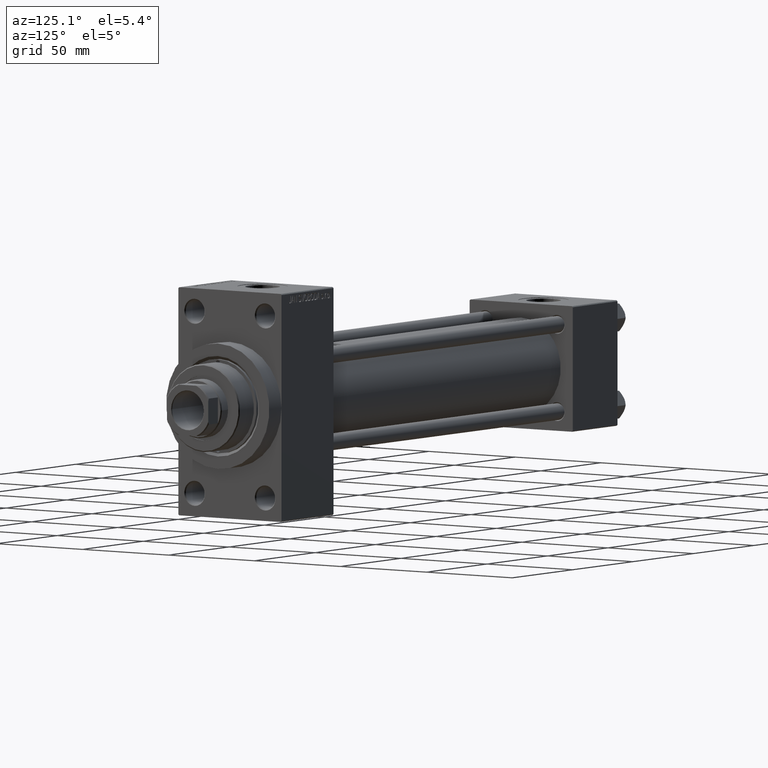
[diagram: clean part render]
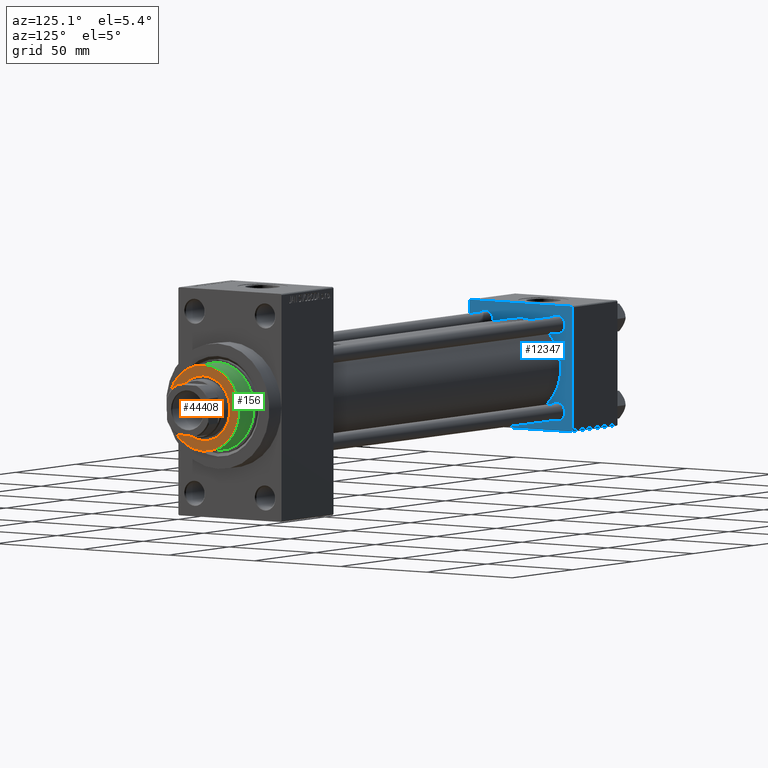
[diagram: same view with three faces highlighted in distinct colors, each labeled with its STEP entity id]
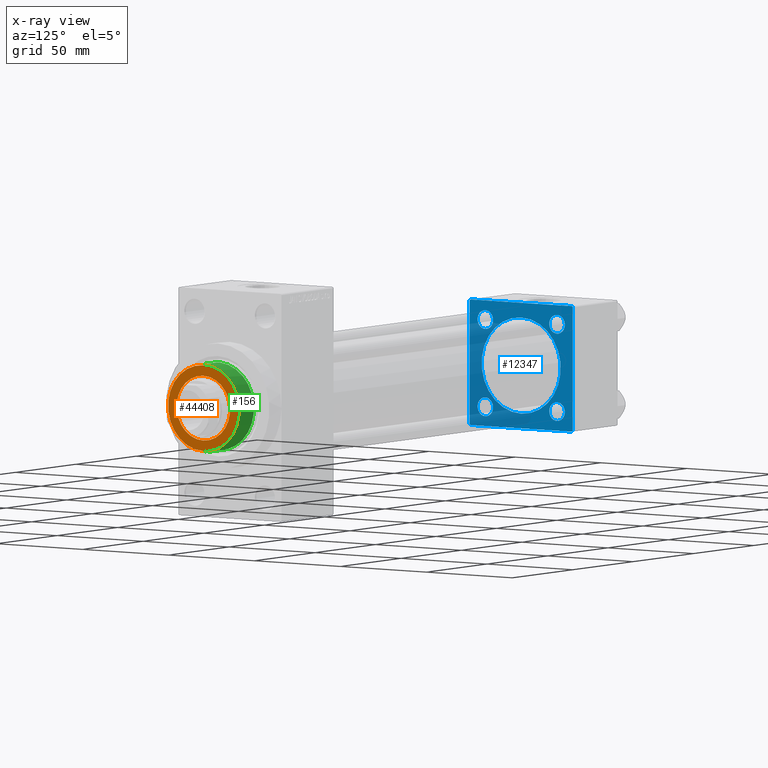
[diagram: x-ray of the same camera — body ghosted, the three highlighted faces saturated]
A machine part, auxiliary view with three faces highlighted in distinct colors.
The next image is the same camera in x-ray (body ghosted, the three faces saturated) — at least one of them is partly hidden behind the body in this view.
Their STEP definitions:

[orange] entity #44408 — the highlighted planar face has unit normal (1, -0, -0).
#189 = CARTESIAN_POINT ( 'NONE',  ( -20.50000000000000355, 0.000000000000000000, 55.26000000000000512 ) ) ;
#351 = EDGE_CURVE ( 'NONE', #33571, #24630, #36420, .T. ) ;
#4675 = CARTESIAN_POINT ( 'NONE',  ( 0.000000000000000000, 0.000000000000000000, 55.26000000000000512 ) ) ;
#4939 = AXIS2_PLACEMENT_3D ( 'NONE', #12833, #5144, #19807 ) ;
#5144 = DIRECTION ( 'NONE',  ( 0.000000000000000000, 0.000000000000000000, 1.000000000000000000 ) ) ;
#5673 = AXIS2_PLACEMENT_3D ( 'NONE', #4675, #41443, #45782 ) ;
#7201 = ORIENTED_EDGE ( 'NONE', *, *, #14554, .T. ) ;
#8754 = CIRCLE ( 'NONE', #9511, 15.50000000000000000 ) ;
#9376 = VERTEX_POINT ( 'NONE', #10929 ) ;
#9511 = AXIS2_PLACEMENT_3D ( 'NONE', #41750, #42458, #39099 ) ;
#10929 = CARTESIAN_POINT ( 'NONE',  ( 20.50000000000000355, 2.541142108230758269E-15, 55.26000000000000512 ) ) ;
#11721 = ORIENTED_EDGE ( 'NONE', *, *, #22144, .F. ) ;
#11731 = DIRECTION ( 'NONE',  ( 0.000000000000000000, 0.000000000000000000, 1.000000000000000000 ) ) ;
#11976 = FACE_OUTER_BOUND ( 'NONE', #30670, .T. ) ;
#12833 = CARTESIAN_POINT ( 'NONE',  ( 0.000000000000000000, 0.000000000000000000, 55.26000000000000512 ) ) ;
#14425 = CARTESIAN_POINT ( 'NONE',  ( 15.50000000000000000, 0.000000000000000000, 55.26000000000000512 ) ) ;
#14554 = EDGE_CURVE ( 'NONE', #38658, #9376, #15434, .T. ) ;
#14583 = DIRECTION ( 'NONE',  ( 1.000000000000000000, 0.000000000000000000, 0.000000000000000000 ) ) ;
#15350 = PLANE ( 'NONE',  #44999 ) ;
#15434 = CIRCLE ( 'NONE', #22360, 20.50000000000000355 ) ;
#16131 = ORIENTED_EDGE ( 'NONE', *, *, #351, .F. ) ;
#17167 = CIRCLE ( 'NONE', #5673, 20.50000000000000355 ) ;
#19807 = DIRECTION ( 'NONE',  ( 1.000000000000000000, 0.000000000000000000, 0.000000000000000000 ) ) ;
#21132 = EDGE_CURVE ( 'NONE', #9376, #38658, #17167, .T. ) ;
#22144 = EDGE_CURVE ( 'NONE', #24630, #33571, #8754, .T. ) ;
#22360 = AXIS2_PLACEMENT_3D ( 'NONE', #43185, #28778, #14583 ) ;
#23215 = EDGE_LOOP ( 'NONE', ( #16131, #11721 ) ) ;
#24630 = VERTEX_POINT ( 'NONE', #28401 ) ;
#26401 = DIRECTION ( 'NONE',  ( 1.000000000000000000, 0.000000000000000000, -0.000000000000000000 ) ) ;
#28401 = CARTESIAN_POINT ( 'NONE',  ( -15.50000000000000000, 1.898202538678397557E-15, 55.26000000000000512 ) ) ;
#28778 = DIRECTION ( 'NONE',  ( 0.000000000000000000, 0.000000000000000000, 1.000000000000000000 ) ) ;
#30670 = EDGE_LOOP ( 'NONE', ( #7201, #37303 ) ) ;
#33571 = VERTEX_POINT ( 'NONE', #14425 ) ;
#33619 = FACE_BOUND ( 'NONE', #23215, .T. ) ;
#36420 = CIRCLE ( 'NONE', #4939, 15.50000000000000000 ) ;
#37303 = ORIENTED_EDGE ( 'NONE', *, *, #21132, .T. ) ;
#38658 = VERTEX_POINT ( 'NONE', #189 ) ;
#39099 = DIRECTION ( 'NONE',  ( 1.000000000000000000, 0.000000000000000000, 0.000000000000000000 ) ) ;
#41443 = DIRECTION ( 'NONE',  ( 0.000000000000000000, 0.000000000000000000, 1.000000000000000000 ) ) ;
#41750 = CARTESIAN_POINT ( 'NONE',  ( 0.000000000000000000, 0.000000000000000000, 55.26000000000000512 ) ) ;
#42458 = DIRECTION ( 'NONE',  ( 0.000000000000000000, 0.000000000000000000, 1.000000000000000000 ) ) ;
#43185 = CARTESIAN_POINT ( 'NONE',  ( 0.000000000000000000, 0.000000000000000000, 55.26000000000000512 ) ) ;
#44408 = ADVANCED_FACE ( 'NONE', ( #33619, #11976 ), #15350, .T. ) ;
#44660 = CARTESIAN_POINT ( 'NONE',  ( 0.000000000000000000, 0.000000000000000000, 55.26000000000000512 ) ) ;
#44999 = AXIS2_PLACEMENT_3D ( 'NONE', #44660, #11731, #26401 ) ;
#45782 = DIRECTION ( 'NONE',  ( 1.000000000000000000, 0.000000000000000000, 0.000000000000000000 ) ) ;

[blue] entity #12347 — the highlighted planar face has unit normal (-1, 0, 0).
#155 = EDGE_LOOP ( 'NONE', ( #12265, #21954 ) ) ;
#1669 = CARTESIAN_POINT ( 'NONE',  ( 37.00000000000000000, 20.84999999999999787, 25.35000000000000497 ) ) ;
#1905 = CARTESIAN_POINT ( 'NONE',  ( 37.00000000000000000, -20.84999999999999076, -20.85000000000000497 ) ) ;
#1908 = FACE_BOUND ( 'NONE', #28838, .T. ) ;
#1985 = ORIENTED_EDGE ( 'NONE', *, *, #37350, .F. ) ;
#2185 = LINE ( 'NONE', #35116, #10339 ) ;
#2249 = EDGE_LOOP ( 'NONE', ( #14739, #46127 ) ) ;
#2334 = CARTESIAN_POINT ( 'NONE',  ( 37.00000000000000000, 20.84999999999999787, -20.85000000000000142 ) ) ;
#2541 = EDGE_CURVE ( 'NONE', #24524, #30530, #15171, .T. ) ;
#2546 = CARTESIAN_POINT ( 'NONE',  ( 37.00000000000000000, -30.00000000000000000, 29.99999999999999289 ) ) ;
#2880 = VERTEX_POINT ( 'NONE', #10639 ) ;
#2896 = DIRECTION ( 'NONE',  ( -1.000000000000000000, 0.000000000000000000, -0.000000000000000000 ) ) ;
#3134 = EDGE_CURVE ( 'NONE', #27179, #46112, #44519, .T. ) ;
#3719 = DIRECTION ( 'NONE',  ( 0.000000000000000000, 0.000000000000000000, 1.000000000000000000 ) ) ;
#4117 = VERTEX_POINT ( 'NONE', #40353 ) ;
#4171 = LINE ( 'NONE', #14993, #36599 ) ;
#4261 = CARTESIAN_POINT ( 'NONE',  ( 37.00000000000000000, -29.50000000000000000, -30.00000000000000711 ) ) ;
#4356 = VERTEX_POINT ( 'NONE', #22967 ) ;
#4643 = DIRECTION ( 'NONE',  ( -1.000000000000000000, 0.000000000000000000, -0.000000000000000000 ) ) ;
#5219 = DIRECTION ( 'NONE',  ( 0.000000000000000000, 0.000000000000000000, 1.000000000000000000 ) ) ;
#5571 = AXIS2_PLACEMENT_3D ( 'NONE', #37118, #4643, #7311 ) ;
#5836 = VERTEX_POINT ( 'NONE', #19016 ) ;
#6048 = CARTESIAN_POINT ( 'NONE',  ( 37.00000000000000711, -2.602085213965210642E-15, 23.00000000000000000 ) ) ;
#6220 = FACE_BOUND ( 'NONE', #155, .T. ) ;
#6618 = DIRECTION ( 'NONE',  ( -1.000000000000000000, 0.000000000000000000, -0.000000000000000000 ) ) ;
#6949 = LINE ( 'NONE', #10780, #39963 ) ;
#6980 = VERTEX_POINT ( 'NONE', #17421 ) ;
#7026 = CARTESIAN_POINT ( 'NONE',  ( 37.00000000000000000, 29.99999999999999289, -30.00000000000000000 ) ) ;
#7311 = DIRECTION ( 'NONE',  ( 0.000000000000000000, 0.000000000000000000, 1.000000000000000000 ) ) ;
#8228 = CARTESIAN_POINT ( 'NONE',  ( 37.00000000000000000, -20.84999999999999076, 25.35000000000000853 ) ) ;
#8627 = ORIENTED_EDGE ( 'NONE', *, *, #34907, .T. ) ;
#8870 = FACE_OUTER_BOUND ( 'NONE', #38385, .T. ) ;
#9105 = FACE_BOUND ( 'NONE', #20011, .T. ) ;
#9106 = VERTEX_POINT ( 'NONE', #4261 ) ;
#9175 = ORIENTED_EDGE ( 'NONE', *, *, #13801, .T. ) ;
#9586 = CARTESIAN_POINT ( 'NONE',  ( 37.00000000000000000, 0.000000000000000000, 0.000000000000000000 ) ) ;
#9818 = VERTEX_POINT ( 'NONE', #16800 ) ;
#9907 = EDGE_CURVE ( 'NONE', #46925, #5836, #17593, .T. ) ;
#9996 = AXIS2_PLACEMENT_3D ( 'NONE', #9586, #23537, #24253 ) ;
#10092 = CARTESIAN_POINT ( 'NONE',  ( 37.00000000000000000, -20.84999999999999076, 20.85000000000000497 ) ) ;
#10177 = ORIENTED_EDGE ( 'NONE', *, *, #29782, .T. ) ;
#10309 = VECTOR ( 'NONE', #14165, 1000.000000000000114 ) ;
#10339 = VECTOR ( 'NONE', #17076, 1000.000000000000000 ) ;
#10639 = CARTESIAN_POINT ( 'NONE',  ( 37.00000000000000000, 20.84999999999999787, 16.34999999999999787 ) ) ;
#10694 = ORIENTED_EDGE ( 'NONE', *, *, #44975, .T. ) ;
#10759 = CARTESIAN_POINT ( 'NONE',  ( 37.00000000000000000, -20.84999999999999076, -16.35000000000000142 ) ) ;
#10780 = CARTESIAN_POINT ( 'NONE',  ( 37.00000000000000000, -29.50000000000001066, -30.00000000000000711 ) ) ;
#11028 = AXIS2_PLACEMENT_3D ( 'NONE', #34421, #15221, #30576 ) ;
#11261 = CARTESIAN_POINT ( 'NONE',  ( 37.00000000000000000, 29.49999999999999289, 30.00000000000000000 ) ) ;
#11617 = CIRCLE ( 'NONE', #36194, 4.500000000000003553 ) ;
#12265 = ORIENTED_EDGE ( 'NONE', *, *, #32301, .T. ) ;
#12312 = VERTEX_POINT ( 'NONE', #1669 ) ;
#12347 = ADVANCED_FACE ( 'NONE', ( #9105, #1908, #20640, #6220, #20877, #8870 ), #38434, .F. ) ;
#12944 = CARTESIAN_POINT ( 'NONE',  ( 37.00000000000000000, 20.84999999999999787, -25.35000000000000497 ) ) ;
#13144 = DIRECTION ( 'NONE',  ( -1.000000000000000000, 0.000000000000000000, -0.000000000000000000 ) ) ;
#13458 = VERTEX_POINT ( 'NONE', #11261 ) ;
#13531 = EDGE_CURVE ( 'NONE', #28377, #9106, #6949, .T. ) ;
#13801 = EDGE_CURVE ( 'NONE', #5836, #46925, #39995, .T. ) ;
#14124 = CIRCLE ( 'NONE', #11028, 23.00000000000000000 ) ;
#14140 = CARTESIAN_POINT ( 'NONE',  ( 37.00000000000000000, -30.00000000000000000, 29.49999999999999289 ) ) ;
#14165 = DIRECTION ( 'NONE',  ( 0.000000000000000000, -0.7071067811865474617, 0.7071067811865474617 ) ) ;
#14233 = AXIS2_PLACEMENT_3D ( 'NONE', #10092, #2896, #47113 ) ;
#14235 = CIRCLE ( 'NONE', #41083, 4.500000000000003553 ) ;
#14409 = AXIS2_PLACEMENT_3D ( 'NONE', #18381, #21514, #3719 ) ;
#14739 = ORIENTED_EDGE ( 'NONE', *, *, #2541, .F. ) ;
#14993 = CARTESIAN_POINT ( 'NONE',  ( 37.00000000000000000, 29.99999999999999289, 30.00000000000000000 ) ) ;
#15156 = EDGE_CURVE ( 'NONE', #12312, #2880, #11617, .T. ) ;
#15171 = CIRCLE ( 'NONE', #14409, 23.00000000000000000 ) ;
#15221 = DIRECTION ( 'NONE',  ( 1.000000000000000000, -0.000000000000000000, 0.000000000000000000 ) ) ;
#15467 = VECTOR ( 'NONE', #28802, 1000.000000000000114 ) ;
#15704 = CIRCLE ( 'NONE', #46377, 4.500000000000003553 ) ;
#16087 = DIRECTION ( 'NONE',  ( 0.000000000000000000, 0.000000000000000000, 1.000000000000000000 ) ) ;
#16267 = EDGE_LOOP ( 'NONE', ( #41390, #34195 ) ) ;
#16800 = CARTESIAN_POINT ( 'NONE',  ( 37.00000000000000000, -29.49999999999998579, 29.99999999999999289 ) ) ;
#17076 = DIRECTION ( 'NONE',  ( 0.000000000000000000, 0.000000000000000000, -1.000000000000000000 ) ) ;
#17097 = CARTESIAN_POINT ( 'NONE',  ( 37.00000000000000000, 20.84999999999999787, -16.34999999999999787 ) ) ;
#17115 = CARTESIAN_POINT ( 'NONE',  ( 37.00000000000000000, 20.84999999999999787, 20.85000000000000142 ) ) ;
#17421 = CARTESIAN_POINT ( 'NONE',  ( 37.00000000000000000, -20.84999999999999076, 16.35000000000000142 ) ) ;
#17593 = CIRCLE ( 'NONE', #19134, 4.500000000000003553 ) ;
#17760 = CARTESIAN_POINT ( 'NONE',  ( 37.00000000000000000, 29.49999999999999289, 30.00000000000000000 ) ) ;
#17808 = ORIENTED_EDGE ( 'NONE', *, *, #13531, .T. ) ;
#18355 = DIRECTION ( 'NONE',  ( 0.000000000000000000, -1.000000000000000000, -1.156482317317871725E-16 ) ) ;
#18381 = CARTESIAN_POINT ( 'NONE',  ( 37.00000000000000711, -2.602085213965210642E-15, 0.000000000000000000 ) ) ;
#18470 = DIRECTION ( 'NONE',  ( 0.000000000000000000, 0.7071067811865474617, -0.7071067811865474617 ) ) ;
#19016 = CARTESIAN_POINT ( 'NONE',  ( 37.00000000000000000, -20.84999999999999076, -25.35000000000000853 ) ) ;
#19134 = AXIS2_PLACEMENT_3D ( 'NONE', #1905, #19454, #16087 ) ;
#19454 = DIRECTION ( 'NONE',  ( -1.000000000000000000, 0.000000000000000000, -0.000000000000000000 ) ) ;
#20011 = EDGE_LOOP ( 'NONE', ( #9175, #40236 ) ) ;
#20364 = CARTESIAN_POINT ( 'NONE',  ( 37.00000000000000000, -20.84999999999999076, -20.85000000000000497 ) ) ;
#20640 = FACE_BOUND ( 'NONE', #16267, .T. ) ;
#20877 = FACE_BOUND ( 'NONE', #2249, .T. ) ;
#21359 = VERTEX_POINT ( 'NONE', #8228 ) ;
#21436 = EDGE_CURVE ( 'NONE', #30530, #24524, #14124, .T. ) ;
#21514 = DIRECTION ( 'NONE',  ( 1.000000000000000000, -0.000000000000000000, 0.000000000000000000 ) ) ;
#21578 = LINE ( 'NONE', #14140, #15467 ) ;
#21844 = VECTOR ( 'NONE', #30775, 1000.000000000000000 ) ;
#21954 = ORIENTED_EDGE ( 'NONE', *, *, #15156, .T. ) ;
#21963 = EDGE_CURVE ( 'NONE', #4356, #13458, #28583, .T. ) ;
#22113 = CARTESIAN_POINT ( 'NONE',  ( 37.00000000000000000, 20.84999999999999787, -20.85000000000000142 ) ) ;
#22967 = CARTESIAN_POINT ( 'NONE',  ( 37.00000000000000000, 29.99999999999999289, 29.50000000000000000 ) ) ;
#23537 = DIRECTION ( 'NONE',  ( -1.000000000000000000, 0.000000000000000000, -0.000000000000000000 ) ) ;
#24209 = DIRECTION ( 'NONE',  ( -1.000000000000000000, 0.000000000000000000, -0.000000000000000000 ) ) ;
#24253 = DIRECTION ( 'NONE',  ( -0.000000000000000000, 0.000000000000000000, 1.000000000000000000 ) ) ;
#24524 = VERTEX_POINT ( 'NONE', #6048 ) ;
#24766 = CARTESIAN_POINT ( 'NONE',  ( 37.00000000000000000, 29.49999999999997868, -30.00000000000000000 ) ) ;
#26169 = EDGE_CURVE ( 'NONE', #27179, #9106, #39953, .T. ) ;
#26498 = DIRECTION ( 'NONE',  ( -0.000000000000000000, 0.7071067811865574537, 0.7071067811865376918 ) ) ;
#27179 = VERTEX_POINT ( 'NONE', #24766 ) ;
#27257 = EDGE_CURVE ( 'NONE', #21359, #6980, #29558, .T. ) ;
#27557 = LINE ( 'NONE', #2546, #34799 ) ;
#27754 = ORIENTED_EDGE ( 'NONE', *, *, #3134, .T. ) ;
#27944 = ORIENTED_EDGE ( 'NONE', *, *, #21963, .T. ) ;
#28056 = DIRECTION ( 'NONE',  ( 0.000000000000000000, 0.000000000000000000, 1.000000000000000000 ) ) ;
#28377 = VERTEX_POINT ( 'NONE', #37435 ) ;
#28496 = AXIS2_PLACEMENT_3D ( 'NONE', #20364, #13144, #5219 ) ;
#28583 = LINE ( 'NONE', #17760, #10309 ) ;
#28802 = DIRECTION ( 'NONE',  ( -0.000000000000000000, -0.7071067811865474617, -0.7071067811865474617 ) ) ;
#28838 = EDGE_LOOP ( 'NONE', ( #43542, #43780 ) ) ;
#29558 = CIRCLE ( 'NONE', #14233, 4.500000000000003553 ) ;
#29782 = EDGE_CURVE ( 'NONE', #9818, #4117, #21578, .T. ) ;
#30206 = CIRCLE ( 'NONE', #47093, 4.500000000000003553 ) ;
#30530 = VERTEX_POINT ( 'NONE', #37501 ) ;
#30576 = DIRECTION ( 'NONE',  ( 0.000000000000000000, 0.000000000000000000, 1.000000000000000000 ) ) ;
#30775 = DIRECTION ( 'NONE',  ( 0.000000000000000000, -1.000000000000000000, -1.156482317317871725E-16 ) ) ;
#32301 = EDGE_CURVE ( 'NONE', #2880, #12312, #35502, .T. ) ;
#34195 = ORIENTED_EDGE ( 'NONE', *, *, #27257, .T. ) ;
#34230 = EDGE_CURVE ( 'NONE', #34561, #39008, #30206, .T. ) ;
#34421 = CARTESIAN_POINT ( 'NONE',  ( 37.00000000000000711, -2.602085213965210642E-15, 0.000000000000000000 ) ) ;
#34438 = DIRECTION ( 'NONE',  ( -1.000000000000000000, 0.000000000000000000, -0.000000000000000000 ) ) ;
#34561 = VERTEX_POINT ( 'NONE', #12944 ) ;
#34799 = VECTOR ( 'NONE', #45831, 1000.000000000000000 ) ;
#34907 = EDGE_CURVE ( 'NONE', #4117, #28377, #27557, .T. ) ;
#35116 = CARTESIAN_POINT ( 'NONE',  ( 37.00000000000000000, 29.99999999999999289, 30.00000000000000000 ) ) ;
#35502 = CIRCLE ( 'NONE', #5571, 4.500000000000003553 ) ;
#36194 = AXIS2_PLACEMENT_3D ( 'NONE', #17115, #34438, #42590 ) ;
#36425 = CARTESIAN_POINT ( 'NONE',  ( 37.00000000000000000, 29.99999999999999289, -29.50000000000000000 ) ) ;
#36545 = EDGE_CURVE ( 'NONE', #39008, #34561, #15704, .T. ) ;
#36599 = VECTOR ( 'NONE', #18355, 1000.000000000000000 ) ;
#37118 = CARTESIAN_POINT ( 'NONE',  ( 37.00000000000000000, 20.84999999999999787, 20.85000000000000142 ) ) ;
#37269 = DIRECTION ( 'NONE',  ( 0.000000000000000000, 0.000000000000000000, 1.000000000000000000 ) ) ;
#37350 = EDGE_CURVE ( 'NONE', #4356, #46112, #2185, .T. ) ;
#37435 = CARTESIAN_POINT ( 'NONE',  ( 37.00000000000000000, -30.00000000000000000, -29.50000000000001776 ) ) ;
#37501 = CARTESIAN_POINT ( 'NONE',  ( 37.00000000000000711, 2.146024240737016609E-16, -23.00000000000000000 ) ) ;
#38246 = CARTESIAN_POINT ( 'NONE',  ( 37.00000000000000000, 29.99999999999999289, -29.50000000000000000 ) ) ;
#38385 = EDGE_LOOP ( 'NONE', ( #40437, #27754, #1985, #27944, #10694, #10177, #8627, #17808 ) ) ;
#38434 = PLANE ( 'NONE',  #9996 ) ;
#39008 = VERTEX_POINT ( 'NONE', #17097 ) ;
#39407 = EDGE_CURVE ( 'NONE', #6980, #21359, #14235, .T. ) ;
#39953 = LINE ( 'NONE', #7026, #21844 ) ;
#39963 = VECTOR ( 'NONE', #18470, 1000.000000000000114 ) ;
#39995 = CIRCLE ( 'NONE', #28496, 4.500000000000003553 ) ;
#40236 = ORIENTED_EDGE ( 'NONE', *, *, #9907, .T. ) ;
#40353 = CARTESIAN_POINT ( 'NONE',  ( 37.00000000000000000, -30.00000000000000000, 29.49999999999999289 ) ) ;
#40437 = ORIENTED_EDGE ( 'NONE', *, *, #26169, .F. ) ;
#40516 = VECTOR ( 'NONE', #26498, 999.9999999999998863 ) ;
#41083 = AXIS2_PLACEMENT_3D ( 'NONE', #46281, #6618, #45814 ) ;
#41390 = ORIENTED_EDGE ( 'NONE', *, *, #39407, .T. ) ;
#42590 = DIRECTION ( 'NONE',  ( 0.000000000000000000, 0.000000000000000000, 1.000000000000000000 ) ) ;
#43542 = ORIENTED_EDGE ( 'NONE', *, *, #34230, .T. ) ;
#43780 = ORIENTED_EDGE ( 'NONE', *, *, #36545, .T. ) ;
#43989 = DIRECTION ( 'NONE',  ( -1.000000000000000000, 0.000000000000000000, -0.000000000000000000 ) ) ;
#44519 = LINE ( 'NONE', #38246, #40516 ) ;
#44975 = EDGE_CURVE ( 'NONE', #13458, #9818, #4171, .T. ) ;
#45814 = DIRECTION ( 'NONE',  ( 0.000000000000000000, 0.000000000000000000, 1.000000000000000000 ) ) ;
#45831 = DIRECTION ( 'NONE',  ( 0.000000000000000000, 0.000000000000000000, -1.000000000000000000 ) ) ;
#46112 = VERTEX_POINT ( 'NONE', #36425 ) ;
#46127 = ORIENTED_EDGE ( 'NONE', *, *, #21436, .F. ) ;
#46281 = CARTESIAN_POINT ( 'NONE',  ( 37.00000000000000000, -20.84999999999999076, 20.85000000000000497 ) ) ;
#46377 = AXIS2_PLACEMENT_3D ( 'NONE', #2334, #24209, #28056 ) ;
#46925 = VERTEX_POINT ( 'NONE', #10759 ) ;
#47093 = AXIS2_PLACEMENT_3D ( 'NONE', #22113, #43989, #37269 ) ;
#47113 = DIRECTION ( 'NONE',  ( 0.000000000000000000, 0.000000000000000000, 1.000000000000000000 ) ) ;

[green] entity #156 — the highlighted cylindrical surface (partial cylindrical patch) has radius 21 mm, axis along (-1, 0, 0).
#58 = AXIS2_PLACEMENT_3D ( 'NONE', #43412, #47016, #9994 ) ;
#156 = ADVANCED_FACE ( 'NONE', ( #2792 ), #21527, .T. ) ;
#805 = EDGE_CURVE ( 'NONE', #19852, #32847, #34899, .T. ) ;
#1898 = CARTESIAN_POINT ( 'NONE',  ( 21.00000000000000000, 2.571758278209441661E-15, 55.26000000000000512 ) ) ;
#2792 = FACE_OUTER_BOUND ( 'NONE', #17714, .T. ) ;
#3327 = VERTEX_POINT ( 'NONE', #31513 ) ;
#5526 = ORIENTED_EDGE ( 'NONE', *, *, #40032, .T. ) ;
#6535 = CIRCLE ( 'NONE', #38783, 21.00000000000000000 ) ;
#7250 = AXIS2_PLACEMENT_3D ( 'NONE', #25138, #14558, #29215 ) ;
#8389 = DIRECTION ( 'NONE',  ( -0.000000000000000000, -0.000000000000000000, -1.000000000000000000 ) ) ;
#9380 = CARTESIAN_POINT ( 'NONE',  ( 0.000000000000000000, 0.000000000000000000, 43.25999999999999801 ) ) ;
#9994 = DIRECTION ( 'NONE',  ( 1.000000000000000000, 0.000000000000000000, 0.000000000000000000 ) ) ;
#11306 = ORIENTED_EDGE ( 'NONE', *, *, #42471, .T. ) ;
#11851 = CIRCLE ( 'NONE', #37296, 21.00000000000000000 ) ;
#12183 = DIRECTION ( 'NONE',  ( 1.000000000000000000, 0.000000000000000000, 0.000000000000000000 ) ) ;
#12735 = EDGE_CURVE ( 'NONE', #32847, #32874, #28468, .T. ) ;
#13490 = VERTEX_POINT ( 'NONE', #21370 ) ;
#14558 = DIRECTION ( 'NONE',  ( -0.000000000000000000, -0.000000000000000000, -1.000000000000000000 ) ) ;
#16594 = EDGE_CURVE ( 'NONE', #32874, #3327, #25478, .T. ) ;
#17033 = AXIS2_PLACEMENT_3D ( 'NONE', #9380, #35349, #24048 ) ;
#17418 = VECTOR ( 'NONE', #31288, 1000.000000000000000 ) ;
#17714 = EDGE_LOOP ( 'NONE', ( #23635, #5526, #20875, #18774, #32151, #11306 ) ) ;
#18774 = ORIENTED_EDGE ( 'NONE', *, *, #12735, .T. ) ;
#19852 = VERTEX_POINT ( 'NONE', #43325 ) ;
#20875 = ORIENTED_EDGE ( 'NONE', *, *, #805, .T. ) ;
#21370 = CARTESIAN_POINT ( 'NONE',  ( 21.00000000000000000, 2.571758278209441661E-15, 43.25999999999999801 ) ) ;
#21527 = CYLINDRICAL_SURFACE ( 'NONE', #7250, 21.00000000000000000 ) ;
#22772 = CARTESIAN_POINT ( 'NONE',  ( 0.000000000000000000, 0.000000000000000000, 43.25999999999999801 ) ) ;
#23363 = CARTESIAN_POINT ( 'NONE',  ( -21.00000000000000000, 0.000000000000000000, 55.26000000000000512 ) ) ;
#23413 = CARTESIAN_POINT ( 'NONE',  ( 21.00000000000000000, 2.571758278209441661E-15, 54.75999999999999091 ) ) ;
#23635 = ORIENTED_EDGE ( 'NONE', *, *, #34397, .F. ) ;
#24048 = DIRECTION ( 'NONE',  ( 1.000000000000000000, 0.000000000000000000, 0.000000000000000000 ) ) ;
#25138 = CARTESIAN_POINT ( 'NONE',  ( 0.000000000000000000, 0.000000000000000000, 55.26000000000000512 ) ) ;
#25478 = CIRCLE ( 'NONE', #17033, 21.00000000000000000 ) ;
#28468 = CIRCLE ( 'NONE', #58, 21.00000000000000000 ) ;
#29215 = DIRECTION ( 'NONE',  ( -1.000000000000000000, 0.000000000000000000, 0.000000000000000000 ) ) ;
#30976 = LINE ( 'NONE', #1898, #34020 ) ;
#31288 = DIRECTION ( 'NONE',  ( -0.000000000000000000, -0.000000000000000000, -1.000000000000000000 ) ) ;
#31513 = CARTESIAN_POINT ( 'NONE',  ( 20.96385542168674831, -1.231570484631382412, 43.25999999999999801 ) ) ;
#32151 = ORIENTED_EDGE ( 'NONE', *, *, #16594, .T. ) ;
#32847 = VERTEX_POINT ( 'NONE', #35578 ) ;
#32874 = VERTEX_POINT ( 'NONE', #42534 ) ;
#33472 = DIRECTION ( 'NONE',  ( 1.000000000000000000, 0.000000000000000000, 0.000000000000000000 ) ) ;
#34020 = VECTOR ( 'NONE', #8389, 1000.000000000000000 ) ;
#34397 = EDGE_CURVE ( 'NONE', #40537, #13490, #30976, .T. ) ;
#34899 = LINE ( 'NONE', #23363, #17418 ) ;
#35349 = DIRECTION ( 'NONE',  ( 0.000000000000000000, 0.000000000000000000, 1.000000000000000000 ) ) ;
#35578 = CARTESIAN_POINT ( 'NONE',  ( -21.00000000000000000, 0.000000000000000000, 43.25999999999999801 ) ) ;
#37296 = AXIS2_PLACEMENT_3D ( 'NONE', #44748, #40436, #33472 ) ;
#38783 = AXIS2_PLACEMENT_3D ( 'NONE', #22772, #41031, #12183 ) ;
#40032 = EDGE_CURVE ( 'NONE', #40537, #19852, #11851, .T. ) ;
#40436 = DIRECTION ( 'NONE',  ( 0.000000000000000000, 0.000000000000000000, -1.000000000000000000 ) ) ;
#40537 = VERTEX_POINT ( 'NONE', #23413 ) ;
#41031 = DIRECTION ( 'NONE',  ( 0.000000000000000000, 0.000000000000000000, 1.000000000000000000 ) ) ;
#42471 = EDGE_CURVE ( 'NONE', #3327, #13490, #6535, .T. ) ;
#42534 = CARTESIAN_POINT ( 'NONE',  ( -20.96385542168674831, -1.231570484631387741, 43.25999999999999801 ) ) ;
#43325 = CARTESIAN_POINT ( 'NONE',  ( -21.00000000000000000, 0.000000000000000000, 54.75999999999999091 ) ) ;
#43412 = CARTESIAN_POINT ( 'NONE',  ( 0.000000000000000000, 0.000000000000000000, 43.25999999999999801 ) ) ;
#44748 = CARTESIAN_POINT ( 'NONE',  ( 0.000000000000000000, 0.000000000000000000, 54.75999999999999091 ) ) ;
#47016 = DIRECTION ( 'NONE',  ( 0.000000000000000000, 0.000000000000000000, 1.000000000000000000 ) ) ;